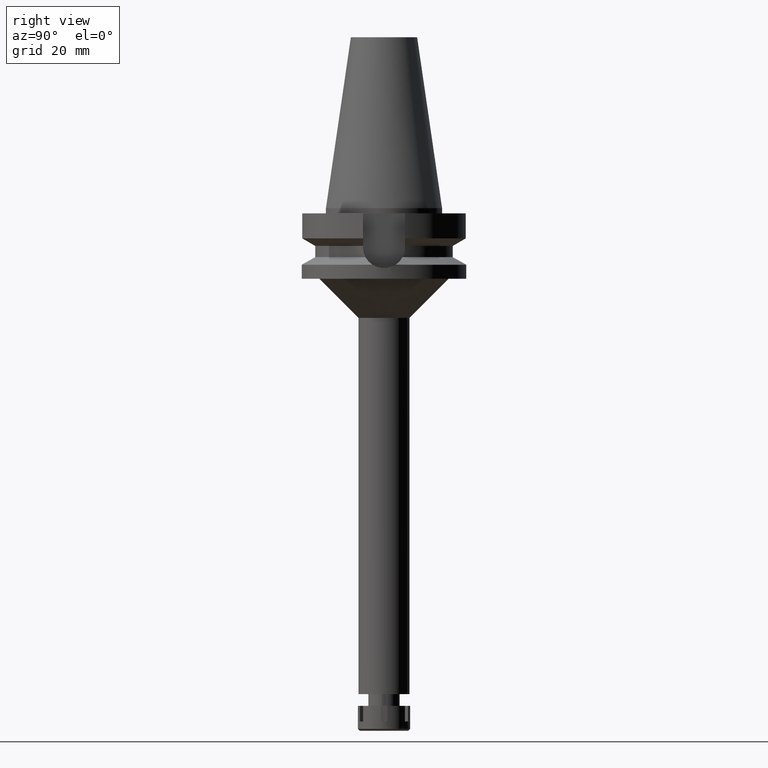
[diagram: clean part render]
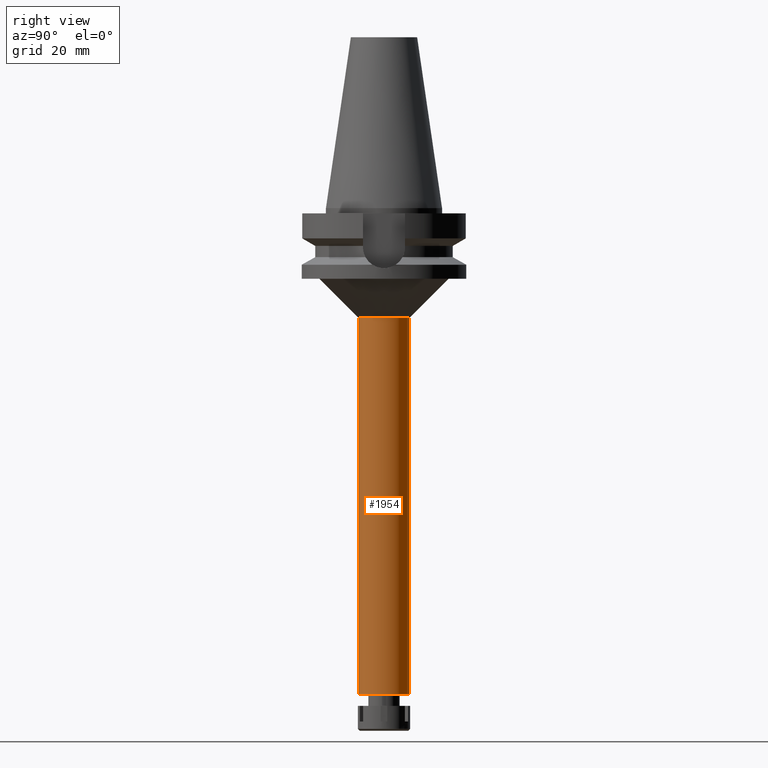
[diagram: same view with one face highlighted and labeled with its STEP entity id]
A machine part, right view. The second image highlights one B-rep face of the part: STEP entity #1954.
In plain terms, the highlighted cylindrical surface (edge-blend (fillet) strip) has radius 9.75 mm, axis along (0, 0, -1).
Its self-contained STEP definition (entity closure, byte-faithful):
#114 = CIRCLE ( 'NONE', #290, 9.750000000000000000 ) ;
#130 = VERTEX_POINT ( 'NONE', #3141 ) ;
#244 = ORIENTED_EDGE ( 'NONE', *, *, #2130, .T. ) ;
#290 = AXIS2_PLACEMENT_3D ( 'NONE', #1323, #1062, #2725 ) ;
#389 = EDGE_LOOP ( 'NONE', ( #3223, #244, #2990, #2241 ) ) ;
#505 = CARTESIAN_POINT ( 'NONE',  ( 0.0000000000000000000, 9.750000000000000000, -42.00000000000000000 ) ) ;
#576 = LINE ( 'NONE', #1166, #2821 ) ;
#995 = AXIS2_PLACEMENT_3D ( 'NONE', #2784, #2765, #1100 ) ;
#1062 = DIRECTION ( 'NONE',  ( 0.0000000000000000000, 0.0000000000000000000, -1.000000000000000000 ) ) ;
#1100 = DIRECTION ( 'NONE',  ( 0.0000000000000000000, -1.000000000000000000, 0.0000000000000000000 ) ) ;
#1166 = CARTESIAN_POINT ( 'NONE',  ( 0.0000000000000000000, 9.750000000000000000, -42.00000000000000000 ) ) ;
#1323 = CARTESIAN_POINT ( 'NONE',  ( 0.0000000000000000000, 0.0000000000000000000, -42.00000000000000000 ) ) ;
#1361 = CYLINDRICAL_SURFACE ( 'NONE', #995, 9.750000000000000000 ) ;
#1371 = EDGE_CURVE ( 'NONE', #2070, #130, #3388, .T. ) ;
#1480 = LINE ( 'NONE', #2886, #2698 ) ;
#1954 = ADVANCED_FACE ( 'NONE', ( #2424 ), #1361, .T. ) ;
#2027 = CARTESIAN_POINT ( 'NONE',  ( 0.0000000000000000000, -9.750000000000000000, -186.0000000000000000 ) ) ;
#2070 = VERTEX_POINT ( 'NONE', #2027 ) ;
#2130 = EDGE_CURVE ( 'NONE', #2531, #2070, #1480, .T. ) ;
#2149 = DIRECTION ( 'NONE',  ( 0.0000000000000000000, -1.000000000000000000, 0.0000000000000000000 ) ) ;
#2241 = ORIENTED_EDGE ( 'NONE', *, *, #2790, .F. ) ;
#2424 = FACE_OUTER_BOUND ( 'NONE', #389, .T. ) ;
#2531 = VERTEX_POINT ( 'NONE', #3533 ) ;
#2626 = EDGE_CURVE ( 'NONE', #3058, #2531, #114, .T. ) ;
#2698 = VECTOR ( 'NONE', #2868, 1000.000000000000000 ) ;
#2725 = DIRECTION ( 'NONE',  ( 0.0000000000000000000, 1.000000000000000000, 0.0000000000000000000 ) ) ;
#2735 = CARTESIAN_POINT ( 'NONE',  ( 0.0000000000000000000, 2.185014819038999686E-14, -186.0000000000000000 ) ) ;
#2765 = DIRECTION ( 'NONE',  ( 0.0000000000000000000, 0.0000000000000000000, -1.000000000000000000 ) ) ;
#2784 = CARTESIAN_POINT ( 'NONE',  ( 0.0000000000000000000, 2.185014819038999686E-14, 78.42000000000000171 ) ) ;
#2790 = EDGE_CURVE ( 'NONE', #3058, #130, #576, .T. ) ;
#2821 = VECTOR ( 'NONE', #2869, 1000.000000000000000 ) ;
#2868 = DIRECTION ( 'NONE',  ( 0.0000000000000000000, 0.0000000000000000000, -1.000000000000000000 ) ) ;
#2869 = DIRECTION ( 'NONE',  ( 0.0000000000000000000, 0.0000000000000000000, -1.000000000000000000 ) ) ;
#2886 = CARTESIAN_POINT ( 'NONE',  ( 0.0000000000000000000, -9.750000000000000000, -42.00000000000000000 ) ) ;
#2990 = ORIENTED_EDGE ( 'NONE', *, *, #1371, .T. ) ;
#3027 = DIRECTION ( 'NONE',  ( 0.0000000000000000000, 0.0000000000000000000, 1.000000000000000000 ) ) ;
#3058 = VERTEX_POINT ( 'NONE', #505 ) ;
#3141 = CARTESIAN_POINT ( 'NONE',  ( 0.0000000000000000000, 9.750000000000000000, -186.0000000000000000 ) ) ;
#3223 = ORIENTED_EDGE ( 'NONE', *, *, #2626, .T. ) ;
#3224 = AXIS2_PLACEMENT_3D ( 'NONE', #2735, #3027, #2149 ) ;
#3388 = CIRCLE ( 'NONE', #3224, 9.750000000000000000 ) ;
#3533 = CARTESIAN_POINT ( 'NONE',  ( 0.0000000000000000000, -9.750000000000000000, -42.00000000000000000 ) ) ;